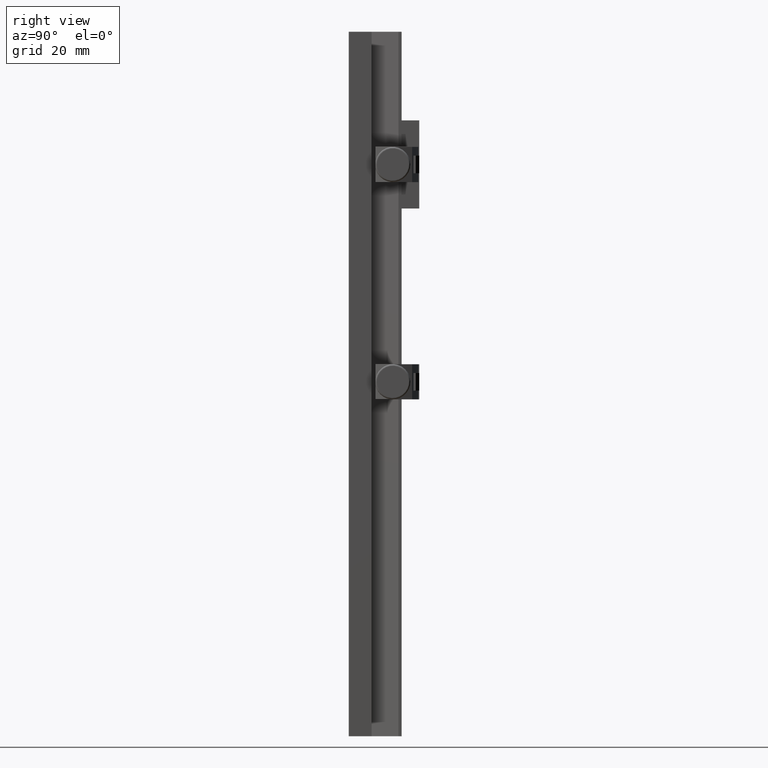
[diagram: clean part render]
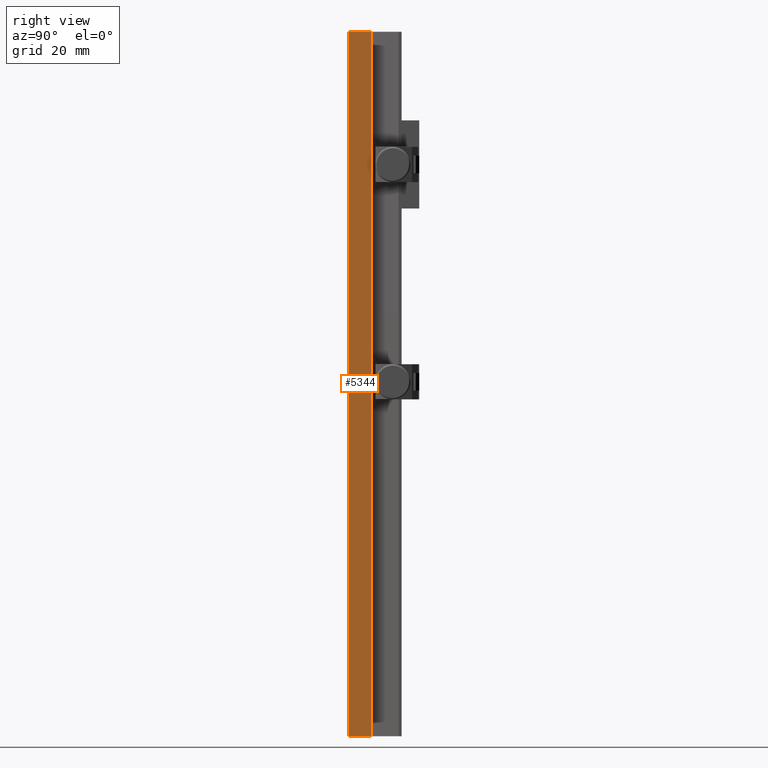
[diagram: same view with one face highlighted and labeled with its STEP entity id]
A machine part, right view. The second image highlights one B-rep face of the part: STEP entity #5344.
In plain terms, the highlighted planar face has unit normal (-1, -0, 0).
Its self-contained STEP definition (entity closure, byte-faithful):
#143 = PLANE ( 'NONE',  #1875 ) ;
#280 = CARTESIAN_POINT ( 'NONE',  ( 20.00000000000000000, 100.0000000000000000, -4.898587196589413026E-15 ) ) ;
#562 = FACE_OUTER_BOUND ( 'NONE', #5244, .T. ) ;
#618 = ORIENTED_EDGE ( 'NONE', *, *, #1724, .T. ) ;
#1163 = DIRECTION ( 'NONE',  ( 5.337610695313253357E-16, 0.000000000000000000, 1.000000000000000000 ) ) ;
#1225 = CARTESIAN_POINT ( 'NONE',  ( 20.00000000000000355, 100.0000000000000000, 6.499999999999993783 ) ) ;
#1228 = ORIENTED_EDGE ( 'NONE', *, *, #3846, .T. ) ;
#1284 = VECTOR ( 'NONE', #5802, 1000.000000000000000 ) ;
#1354 = VECTOR ( 'NONE', #6477, 1000.000000000000000 ) ;
#1592 = DIRECTION ( 'NONE',  ( -0.000000000000000000, -1.000000000000000000, -0.000000000000000000 ) ) ;
#1724 = EDGE_CURVE ( 'NONE', #1981, #4946, #1982, .T. ) ;
#1766 = CARTESIAN_POINT ( 'NONE',  ( 20.00000000000000355, -100.0000000000000000, 6.499999999999993783 ) ) ;
#1875 = AXIS2_PLACEMENT_3D ( 'NONE', #4183, #2719, #1163 ) ;
#1951 = EDGE_CURVE ( 'NONE', #4861, #4117, #3815, .T. ) ;
#1981 = VERTEX_POINT ( 'NONE', #2743 ) ;
#1982 = LINE ( 'NONE', #1766, #1354 ) ;
#2719 = DIRECTION ( 'NONE',  ( -1.000000000000000000, 0.000000000000000000, 5.337610695313253357E-16 ) ) ;
#2743 = CARTESIAN_POINT ( 'NONE',  ( 20.00000000000000355, -100.0000000000000000, 6.499999999999993783 ) ) ;
#2824 = ORIENTED_EDGE ( 'NONE', *, *, #3574, .F. ) ;
#2948 = CARTESIAN_POINT ( 'NONE',  ( 20.00000000000000000, 100.0000000000000000, -4.898587196589413026E-15 ) ) ;
#3296 = LINE ( 'NONE', #280, #1284 ) ;
#3574 = EDGE_CURVE ( 'NONE', #4117, #4946, #3296, .T. ) ;
#3670 = CARTESIAN_POINT ( 'NONE',  ( 20.00000000000000355, 100.0000000000000000, 6.499999999999993783 ) ) ;
#3815 = LINE ( 'NONE', #1225, #5520 ) ;
#3846 = EDGE_CURVE ( 'NONE', #4861, #1981, #6191, .T. ) ;
#4117 = VERTEX_POINT ( 'NONE', #2948 ) ;
#4118 = CARTESIAN_POINT ( 'NONE',  ( 20.00000000000000355, 100.0000000000000000, 6.499999999999993783 ) ) ;
#4183 = CARTESIAN_POINT ( 'NONE',  ( 20.00000000000000355, 100.0000000000000000, 6.499999999999993783 ) ) ;
#4823 = CARTESIAN_POINT ( 'NONE',  ( 20.00000000000000000, -100.0000000000000000, -4.898587196589413026E-15 ) ) ;
#4861 = VERTEX_POINT ( 'NONE', #3670 ) ;
#4946 = VERTEX_POINT ( 'NONE', #4823 ) ;
#5244 = EDGE_LOOP ( 'NONE', ( #618, #2824, #6387, #1228 ) ) ;
#5271 = DIRECTION ( 'NONE',  ( -5.337610695313253357E-16, 0.000000000000000000, -1.000000000000000000 ) ) ;
#5344 = ADVANCED_FACE ( 'NONE', ( #562 ), #143, .F. ) ;
#5520 = VECTOR ( 'NONE', #5271, 1000.000000000000000 ) ;
#5802 = DIRECTION ( 'NONE',  ( -0.000000000000000000, -1.000000000000000000, -0.000000000000000000 ) ) ;
#6191 = LINE ( 'NONE', #4118, #6525 ) ;
#6387 = ORIENTED_EDGE ( 'NONE', *, *, #1951, .F. ) ;
#6477 = DIRECTION ( 'NONE',  ( -5.337610695313253357E-16, 0.000000000000000000, -1.000000000000000000 ) ) ;
#6525 = VECTOR ( 'NONE', #1592, 1000.000000000000000 ) ;